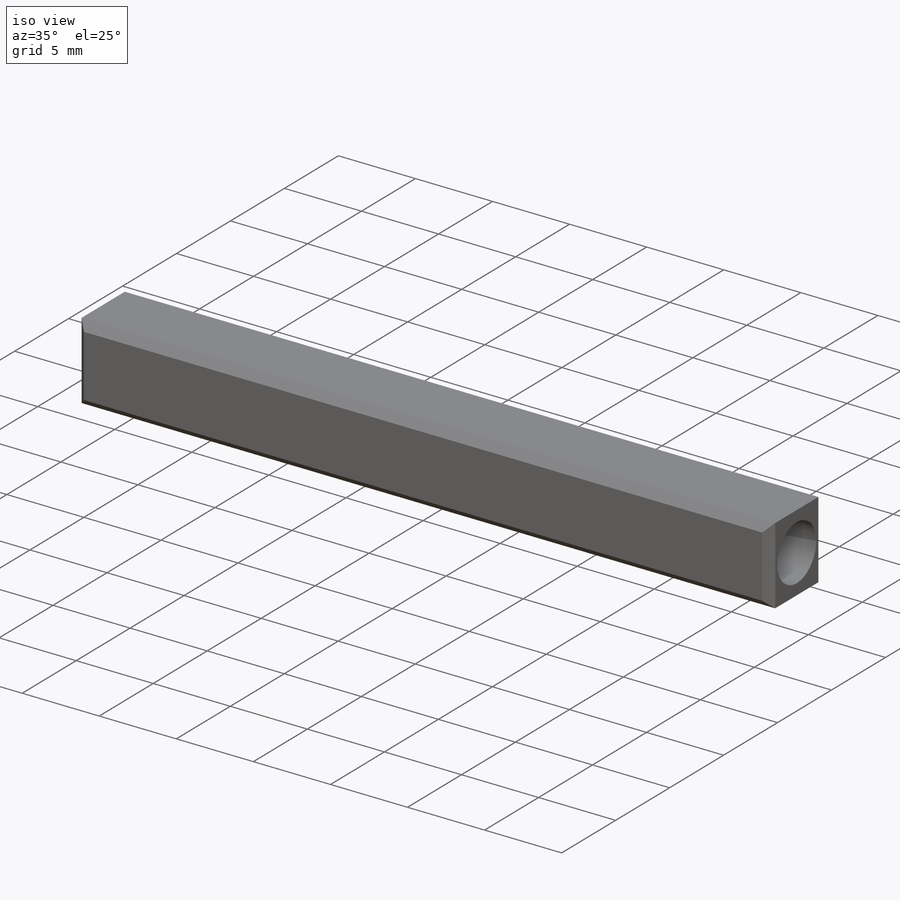
[diagram: iso view]
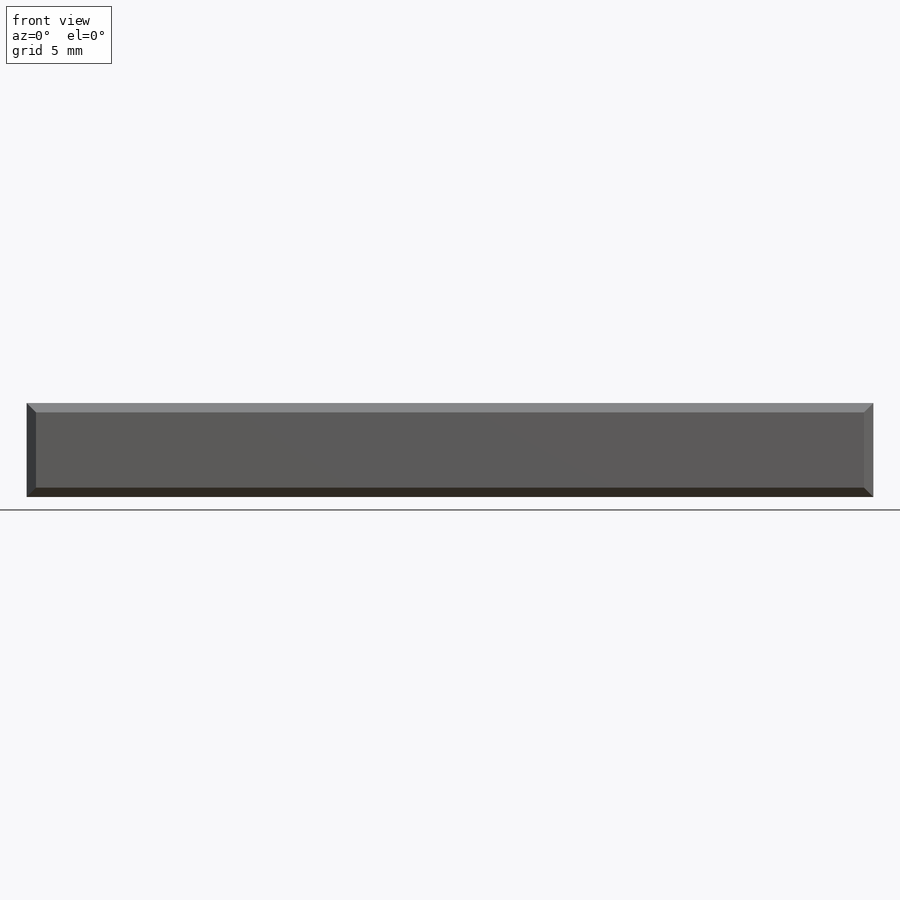
[diagram: front view]
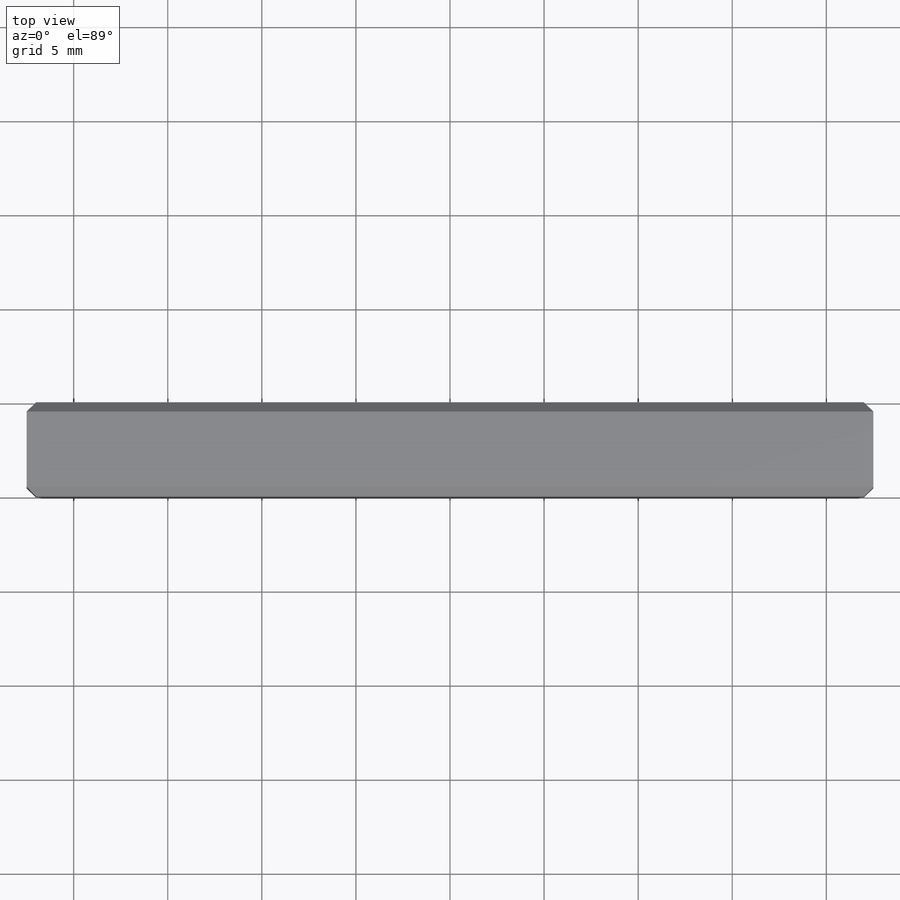
[diagram: top view]
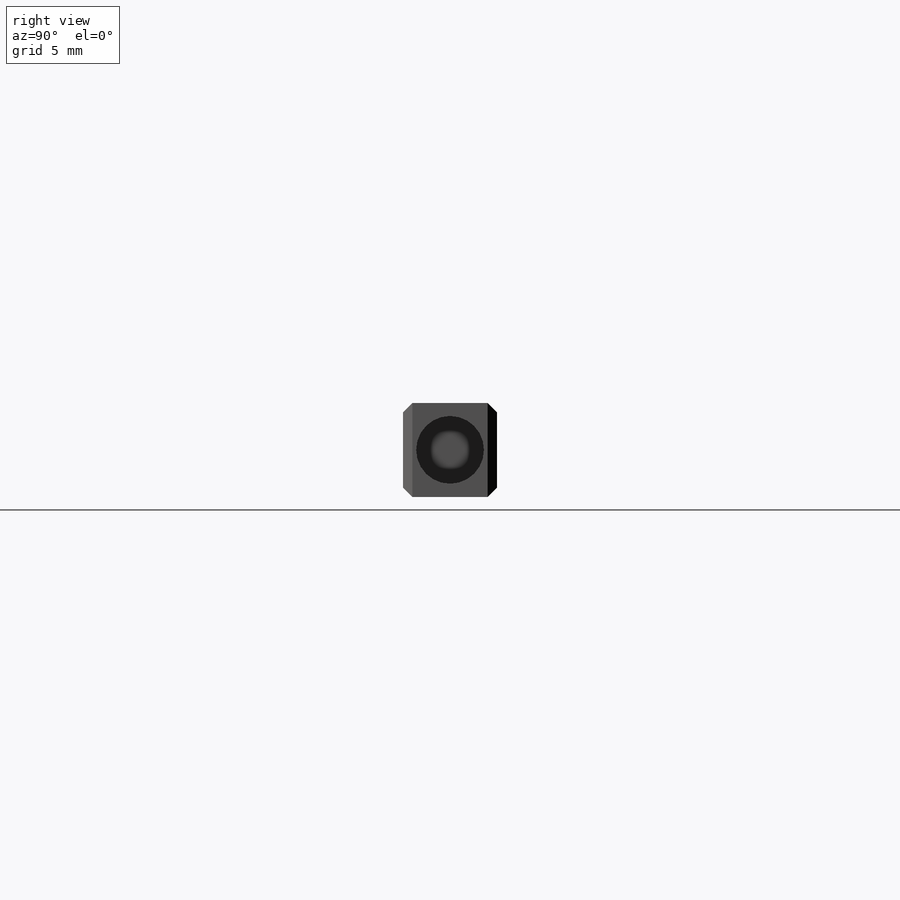
[diagram: right view]
SOLIDWORKS PART (.sldprt)
format: sldprt  version: not decoded by parser v0  size: 152,064 bytes
history: native  units: mm
features: sketch x2, material x1, extrude x1, cut_extrude x1, mirror x1, chamfer x1 (+13 scaffold rows collapsed)
feature tree (20):
  scaffold x13  (default folders/planes/origin — collapsed)
  material  "Material <not specified>"
  sketch  "Sketch1"  dims[c1.D1=~23.832171mm c2.D1=45.0deg c2.D2=10.0mm c2.D3=5.0mm c2.D4=22.5mm c3.D1=22.5mm c3.D2=7.0mm c3.D4=5.0mm c3.D5=5.0mm c4.D5=135.0deg]
  extrude  "Boss-Extrude1"  Depth=5mm
  sketch  "Sketch2"  dims[D1=3.6mm D2=2.5mm]
  cut_extrude  "Cut-Extrude1"  Depth=5mm
  mirror  "Mirror1"
  chamfer  "Chamfer1"  Distance=0.5mm Angle=45deg
decode coverage: 5 of 6 modeling features carry decoded parameters
note: ~ marks probable driven/reference dimensions
note: suppression state not decoded; provenance and decode notes live in map.json
